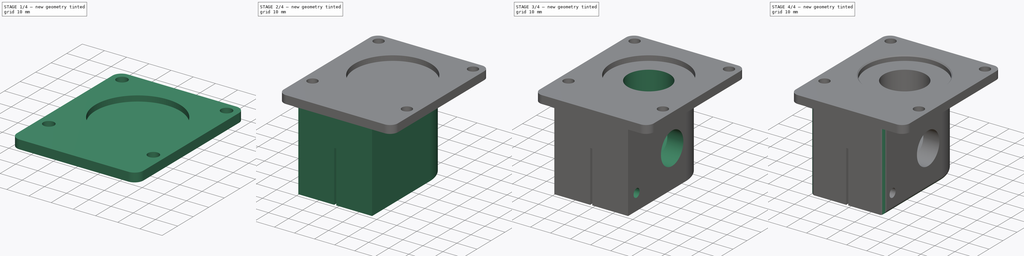
[diagram: build sequence overview — one tinted view per stage of 4, left to right]
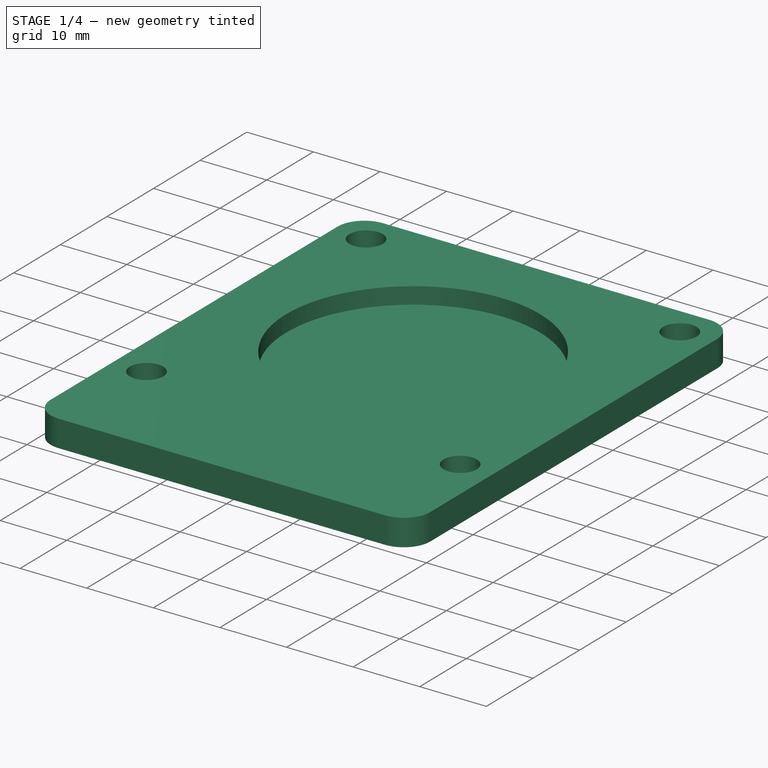
[diagram: stage 1 of 4 — iso view after this stage's code; geometry added in this stage tinted green]
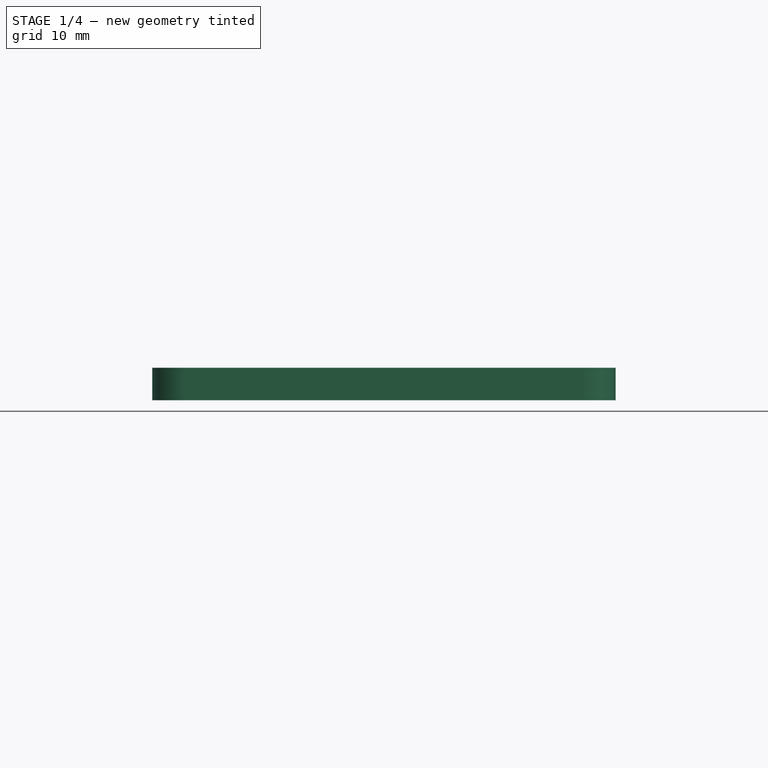
[diagram: stage 1 of 4 — front view after this stage's code; geometry added in this stage tinted green]
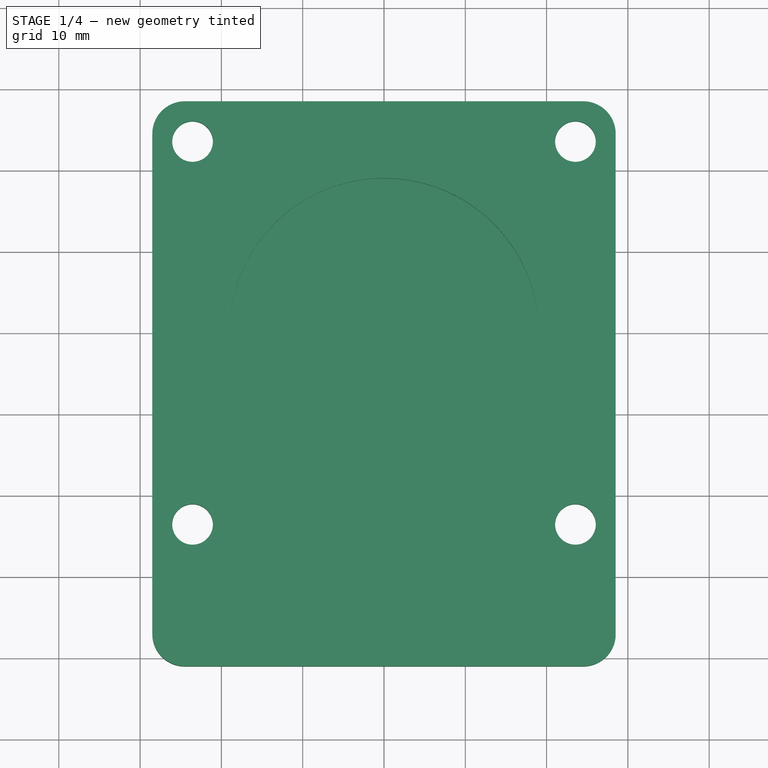
[diagram: stage 1 of 4 — top view after this stage's code; geometry added in this stage tinted green]
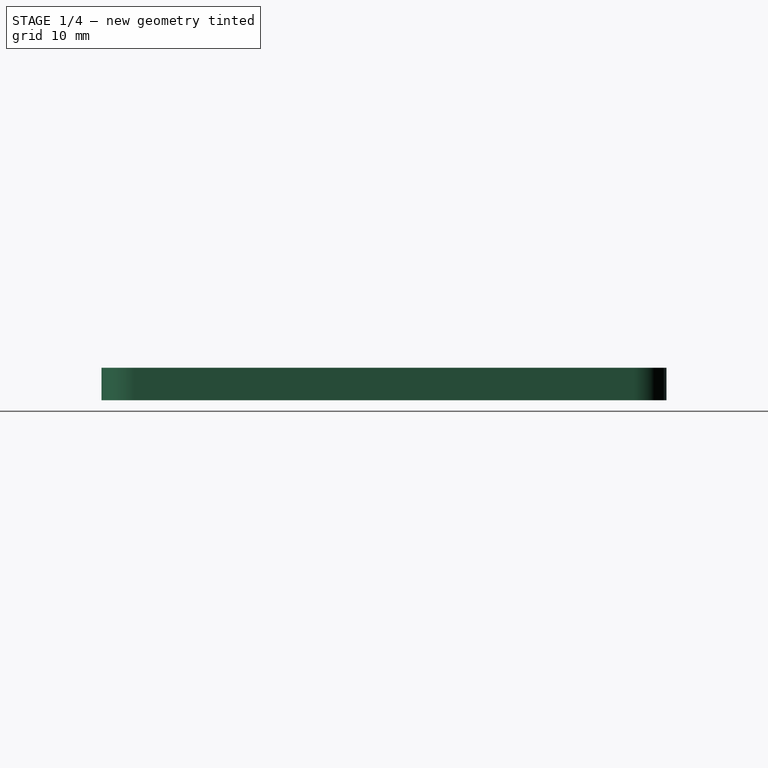
[diagram: stage 1 of 4 — right view after this stage's code; geometry added in this stage tinted green]
FCSTD DOCUMENT  (FreeCAD 0.21R31155 (Git))
Label: BLDC Adapter
License: All rights reserved
LicenseURL: http://en.wikipedia.org/wiki/All_rights_reserved
objects: Sketcher::SketchObject×8, PartDesign::Pocket×5, PartDesign::Pad×2, PartDesign::CoordinateSystem×2, Spreadsheet::Sheet×1, PartDesign::Hole×1, PartDesign::Chamfer×1, PartDesign::Fillet×1, PartDesign::Body×1, App::Part×1
note: 31 computed .brp shape members not serialized (recipe doc carries the construction recipe); baked Part::Feature solids carry a one-line shape summary decoded from their .brp

FEATURE [Spreadsheet::Sheet] Spreadsheet  label="SpindleData"
  cells = A2=Nema23; A3=MotorSize; B3(MotorSize)=57; A4=WallThickness; B4(WallThickness)=4; A6=BodyFilet; B6(BodyFilet)=2; A7=LockBoltDiameter; B7(LockBoltDiameter)=4.1; C7=M4; A8=MotorShaftPocketDiameter; B8(MotorShaftPocketDiameter)=21; C8=Bevel gear 18 mm; A9=MotorShaftOffset; B9(MotorShaftOffset)=18; A10=MotorShaftPocketDepth; B10(MotorShaftPocketDepth)=26; A12=SlitWidth; B12(SlitWidth)=1; A13=SlitLength; B13(SlitLength)==MountingShaftPocketDepth * 0.8 + 1; A15=MountingPlateThickness; B15(MountingPlateThickness)=4; A16=ShaftPositionV; B16(ShaftPositionV)=30; A18=PeekHoleDiameter; B18(PeekHoleDiameter)=16; A21=LockBoltPositionV; B21(LockBoltPositionV)==BodyLength - WallThickness - LockBoltDiameter; A22=LockBoltPositionH; B22(LockBoltPositionH)==MotorShaftOffset + MountingShaftDiameter / 2 + 0.5 + LockBoltDiameter / 2; A25=MountingShaftPocketDepth; B25(MountingShaftPocketDepth)==MotorSize / 2; A26=MountingShaftDiameter; B26(MountingShaftDiameter)=28.8; A28=ShaftPocketDepth; B28(ShaftPocketDepth)==MotorSize / 2 + MotorShaftPocketDiameter; A29=BodyDiameter; B29(BodyDiameter)==MountingShaftDiameter + WallThickness * 2; A30=BodyLength; B30(BodyLength)==LockBoltPositionH + LockBoltDiameter / 2 + 2; A31=BodyHeight; B31(BodyHeight)==LockBoltPositionH + LockBoltDiameter / 2 + WallThickness; A33=SlitPositionV; B33(SlitPositionV)==BodyLength / 2 - 5; A34=SlitPositionH; B34(SlitPositionH)==BodyLength / 2; A35=Print3Dcorrection; B35(Print3Dcorrection)=0.2
FEATURE [Sketcher::SketchObject] Sketch076
  FullyConstrained = true
  MapMode = 5
  Support = -> [XY_Plane027]
  expr: Constraints[41] = Spreadsheet.MotorSize / 2
  expr: Constraints[42] = Spreadsheet.BodyHeight
  sketch-geometry (20):
    g0: LineSegment StartX=-24.5 StartY=28.5 StartZ=0 EndX=24.5 EndY=28.5 EndZ=0
    g1: LineSegment StartX=28.5 StartY=24.5 StartZ=0 EndX=28.5 EndY=-37 EndZ=0
    g2: LineSegment StartX=24.5 StartY=-41 StartZ=0 EndX=-24.5 EndY=-41 EndZ=0
    g3: LineSegment StartX=-28.5 StartY=-37 StartZ=0 EndX=-28.5 EndY=24.5 EndZ=0
    g4: LineSegment StartX=-23.55 StartY=23.55 StartZ=0 EndX=23.55 EndY=23.55 EndZ=0
    g5: LineSegment StartX=23.55 StartY=23.55 StartZ=0 EndX=23.55 EndY=-23.55 EndZ=0
    g6: LineSegment StartX=23.55 StartY=-23.55 StartZ=0 EndX=-23.55 EndY=-23.55 EndZ=0
    g7: LineSegment StartX=-23.55 StartY=-23.55 StartZ=0 EndX=-23.55 EndY=23.55 EndZ=0
    g8: Circle CenterX=-23.55 CenterY=23.55 CenterZ=0 NormalX=0 NormalY=0 NormalZ=1 AngleXU=0 Radius=2.5
    g9: Circle CenterX=23.55 CenterY=23.55 CenterZ=0 NormalX=0 NormalY=0 NormalZ=1 AngleXU=0 Radius=2.5
    g10: Circle CenterX=23.55 CenterY=-23.55 CenterZ=0 NormalX=0 NormalY=0 NormalZ=1 AngleXU=0 Radius=2.5
    g11: Circle CenterX=-23.55 CenterY=-23.55 CenterZ=0 NormalX=0 NormalY=0 NormalZ=1 AngleXU=0 Radius=2.5
    g12: ArcOfCircle CenterX=-24.5 CenterY=24.5 CenterZ=0 NormalX=0 NormalY=0 NormalZ=1 AngleXU=0 Radius=4 StartAngle=1.5708 EndAngle=3.14159
    g13: GeomPoint X=-28.5 Y=28.5 Z=0
    g14: ArcOfCircle CenterX=24.5 CenterY=24.5 CenterZ=0 NormalX=0 NormalY=0 NormalZ=1 AngleXU=0 Radius=4 StartAngle=3e-16 EndAngle=1.5708
    g15: GeomPoint X=28.5 Y=28.5 Z=0
    g16: ArcOfCircle CenterX=24.5 CenterY=-37 CenterZ=0 NormalX=0 NormalY=0 NormalZ=1 AngleXU=0 Radius=4 StartAngle=4.71239 EndAngle=6.28319
    g17: GeomPoint X=28.5 Y=-41 Z=0
    g18: ArcOfCircle CenterX=-24.5 CenterY=-37 CenterZ=0 NormalX=0 NormalY=0 NormalZ=1 AngleXU=0 Radius=4 StartAngle=3.14159 EndAngle=4.71239
    g19: GeomPoint X=-28.5 Y=-41 Z=0
  constraints (46):
    c: Horizontal(g0)
    c: Horizontal(g2)
    c: Vertical(g1)
    c: Vertical(g3)
    c: DistanceX(g13,g15) = 57
    c: Coincident(g4,g5)
    c: Coincident(g5,g6)
    c: Coincident(g6,g7)
    c: Coincident(g7,g4)
    c: Horizontal(g4)
    c: Horizontal(g6)
    c: Vertical(g5)
    c: Vertical(g7)
    c: DistanceX(g4,g4) = 47.1
    c: Coincident(g8,g4)
    c: Diameter(g8) = 5
    c: Coincident(g9,g4)
    c: Coincident(g10,g5)
    c: Coincident(g11,g6)
    c: Equal(g8,g9)
    c: Equal(g9,g10)
    c: Equal(g10,g11)
    c: PointOnObject(g13,g3)
    c: PointOnObject(g13,g0)
    c: Tangent(g3,g12) = 1.5708
    c: Tangent(g0,g12) = 1.5708
    c: PointOnObject(g15,g0)
    c: PointOnObject(g15,g1)
    c: Tangent(g0,g14) = 1.5708
    c: Tangent(g1,g14) = 1.5708
    c: PointOnObject(g17,g1)
    c: PointOnObject(g17,g2)
    c: Tangent(g1,g16) = 1.5708
    c: Tangent(g2,g16) = 1.5708
    c: PointOnObject(g19,g2)
    c: PointOnObject(g19,g3)
    c: Tangent(g2,g18) = 1.5708
    c: Tangent(g3,g18) = 1.5708
    c: Radius(g12) = 4
    c: Equal(g2,g0)
    c: Symmetric(g3,g1,g-2)
    c: DistanceY(g-1,g0) = 28.5
    c: DistanceY(g17,g-1) = 41
    c: Equal(g3,g1)
    c: Symmetric(g8,g10,g-1)
    c: Equal(g4,g7)
FEATURE [PartDesign::Pad] Pad044  label="Base"
  Direction = (0,0,1)
  Length = 4
  Length2 = 10
  Profile = -> Sketch076
  ReferenceAxis = -> Sketch076 [N_Axis]
  Type = 0
  expr: Length = Spreadsheet.MountingPlateThickness
FEATURE [Sketcher::SketchObject] Sketch077
  FullyConstrained = true
  MapMode = 5
  Support = -> [XY_Plane027]
  expr: Constraints[3] = Spreadsheet.BodyDiameter
  expr: Constraints[9] = Spreadsheet.BodyHeight
  sketch-geometry (4):
    g0: LineSegment StartX=-18.4 StartY=-41 StartZ=0 EndX=18.4 EndY=-41 EndZ=0
    g1: ArcOfCircle CenterX=0 CenterY=0 CenterZ=0 NormalX=0 NormalY=0 NormalZ=1 AngleXU=0 Radius=18.4 StartAngle=0 EndAngle=3.14159
    g2: LineSegment StartX=18.4 StartY=-41 StartZ=0 EndX=18.4 EndY=0 EndZ=0
    g3: LineSegment StartX=-18.4 StartY=0 StartZ=0 EndX=-18.4 EndY=-41 EndZ=0
  constraints (10):
    c: Horizontal(g0)
    c: Tangent(g2,g1) = -1.5708
    c: Tangent(g1,g3) = -1.5708
    c: Diameter(g1) = 36.8
    c: Coincident(g2,g0)
    c: Coincident(g3,g0)
    c: Vertical(g3)
    c: Vertical(g2)
    c: Coincident(g1,g-1)
    c: DistanceY(g2,g2) = 41
FEATURE [Sketcher::SketchObject] Sketch078
  FullyConstrained = true
  MapMode = 5
  Placement = pos=(0,0,4) rot=(0,0,1;0rad)
  Support = -> [Pad044]
  sketch-geometry (1):
    g0: Circle CenterX=0 CenterY=0 CenterZ=0 NormalX=0 NormalY=0 NormalZ=1 AngleXU=0 Radius=19.05
  constraints (2):
    c: Coincident(g0,g-1)
    c: Diameter(g0) = 38.1
FEATURE [PartDesign::Pocket] Pocket025  label="Register"
  BaseFeature = -> Pad044
  Direction = (0,0,-1)
  Length = 2.5
  Length2 = 5
  Profile = -> Sketch078
  ReferenceAxis = -> Sketch078 [N_Axis]
  Type = 0
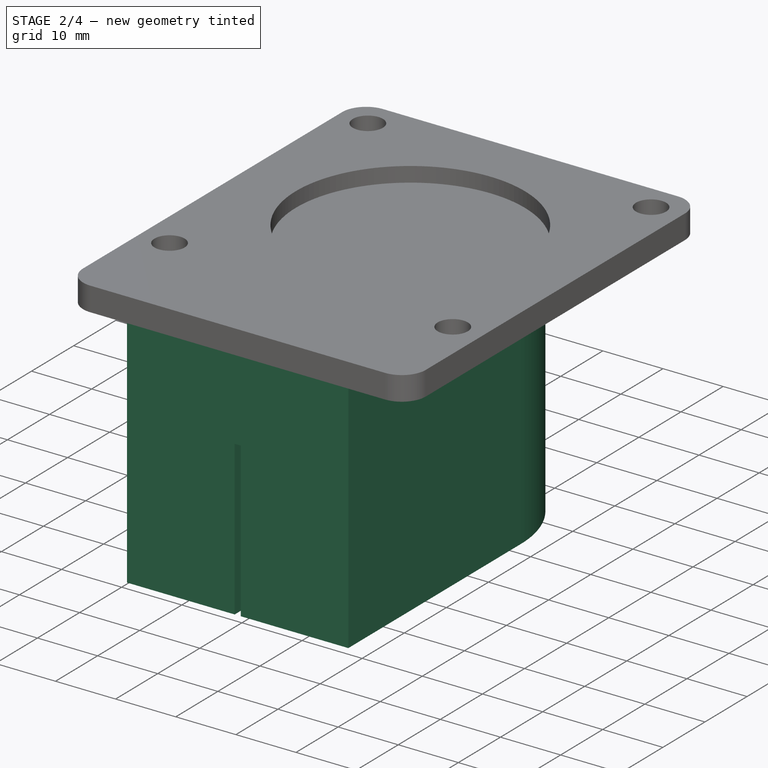
[diagram: stage 2 of 4 — iso view after this stage's code; geometry added in this stage tinted green]
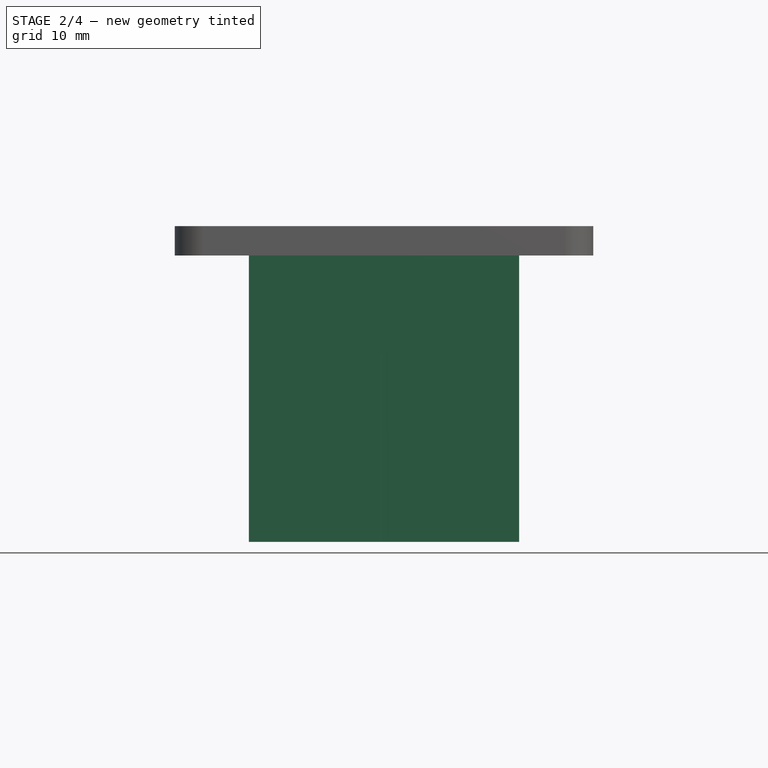
[diagram: stage 2 of 4 — front view after this stage's code; geometry added in this stage tinted green]
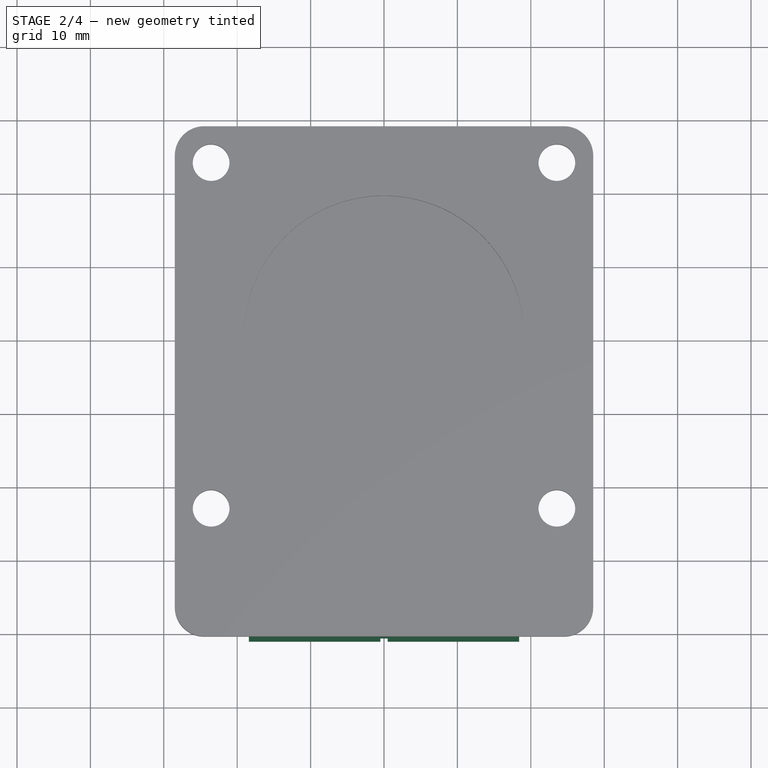
[diagram: stage 2 of 4 — top view after this stage's code; geometry added in this stage tinted green]
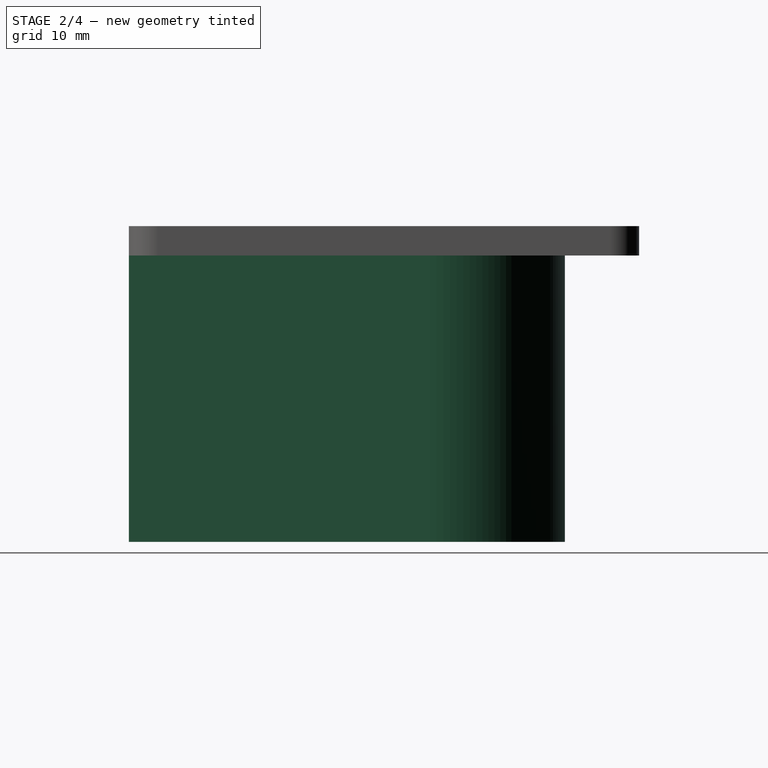
[diagram: stage 2 of 4 — right view after this stage's code; geometry added in this stage tinted green]
FEATURE [PartDesign::Pad] Pad045  label="BodyOuter"
  BaseFeature = -> Pocket025
  Direction = (0,0,1)
  Length = 39
  Length2 = 10
  Profile = -> Sketch077
  ReferenceAxis = -> Sketch077 [N_Axis]
  Reversed = true
  Type = 0
  expr: Length = Spreadsheet.BodyLength
FEATURE [Sketcher::SketchObject] Sketch
  AttachmentOffset = pos=(0,0,-39) rot=(0,0,1;0rad)
  FullyConstrained = true
  MapMode = 5
  Placement = pos=(0,0,-39) rot=(0,0,1;0rad)
  Support = -> [XY_Plane027]
  expr: .AttachmentOffset.Base.z = -Spreadsheet.BodyLength
  expr: Constraints[1] = Spreadsheet.MountingShaftDiameter + Spreadsheet.Print3Dcorrection
  expr: Constraints[2] = Spreadsheet.MotorShaftOffset
  sketch-geometry (1):
    g0: Circle CenterX=0 CenterY=-18 CenterZ=0 NormalX=0 NormalY=0 NormalZ=1 AngleXU=0 Radius=14.5
  constraints (3):
    c: PointOnObject(g0,g-2)
    c: Diameter(g0) = 29
    c: DistanceY(g0,g-1) = 18
FEATURE [PartDesign::Pocket] Pocket  label="MountingShaftPocket"
  BaseFeature = -> Pad045
  Direction = (0,0,-1)
  Length = 28.5
  Length2 = 5
  Profile = -> Sketch
  ReferenceAxis = -> Sketch [N_Axis]
  Reversed = true
  Type = 0
  expr: Length = Spreadsheet.MountingShaftPocketDepth
FEATURE [Sketcher::SketchObject] Sketch081
  AttachmentOffset = pos=(0,0,28.5) rot=(0,0,1;0rad)
  FullyConstrained = true
  MapMode = 5
  Placement = pos=(0,-28.5,-6.3e-15) rot=(1,0,0;1.5708rad)
  Support = -> [XZ_Plane027]
  expr: .AttachmentOffset.Base.z = Spreadsheet.MotorSize / 2
  expr: Constraints[10] = Spreadsheet.MountingShaftPocketDepth * 0.9 + 1
  expr: Constraints[7] = Spreadsheet.SlitWidth
  expr: Constraints[9] = Spreadsheet.BodyLength + 1
  sketch-geometry (4):
    g0: LineSegment StartX=-0.5 StartY=-13.35 StartZ=0 EndX=0.5 EndY=-13.35 EndZ=0
    g1: LineSegment StartX=0.5 StartY=-13.35 StartZ=0 EndX=0.5 EndY=-40 EndZ=0
    g2: LineSegment StartX=0.5 StartY=-40 StartZ=0 EndX=-0.5 EndY=-40 EndZ=0
    g3: LineSegment StartX=-0.5 StartY=-40 StartZ=0 EndX=-0.5 EndY=-13.35 EndZ=0
  constraints (11):
    c: Coincident(g0,g1)
    c: Coincident(g1,g2)
    c: Coincident(g2,g3)
    c: Coincident(g3,g0)
    c: Horizontal(g2)
    c: Vertical(g1)
    c: Vertical(g3)
    c: DistanceX(g2,g2) = 1
    c: Symmetric(g0,g0,g-2)
    c: DistanceY(g1,g-1) = 40
    c: DistanceY(g1,g1) = 26.65
FEATURE [PartDesign::Pocket] Pocket028  label="SlitV"
  BaseFeature = -> Pocket
  Direction = (0,1,2e-16)
  Length = 19.5
  Length2 = 5
  Profile = -> Sketch081
  ReferenceAxis = -> Sketch081 [N_Axis]
  Reversed = true
  Type = 1
  expr: Length = Spreadsheet.SlitPositionH
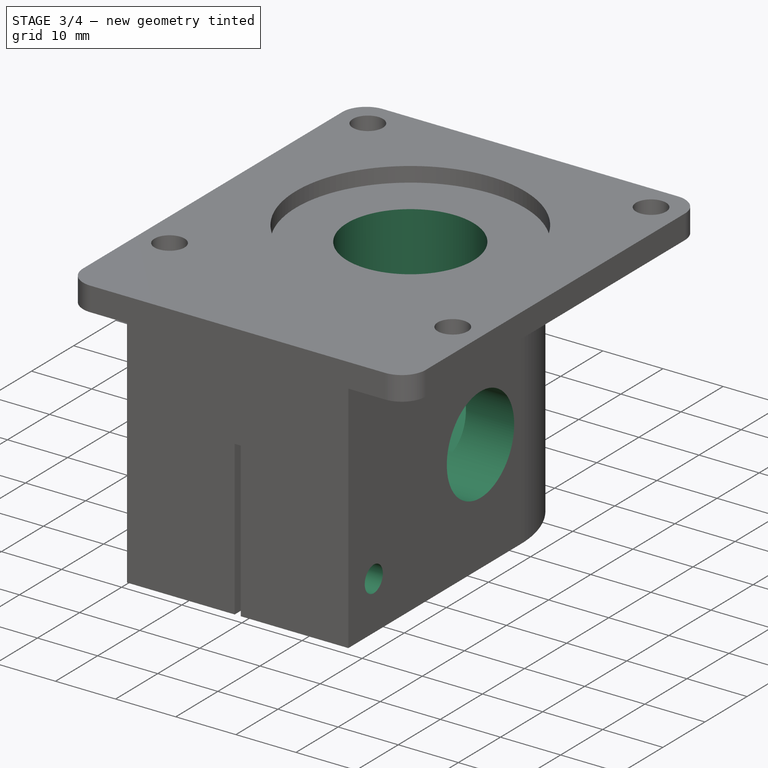
[diagram: stage 3 of 4 — iso view after this stage's code; geometry added in this stage tinted green]
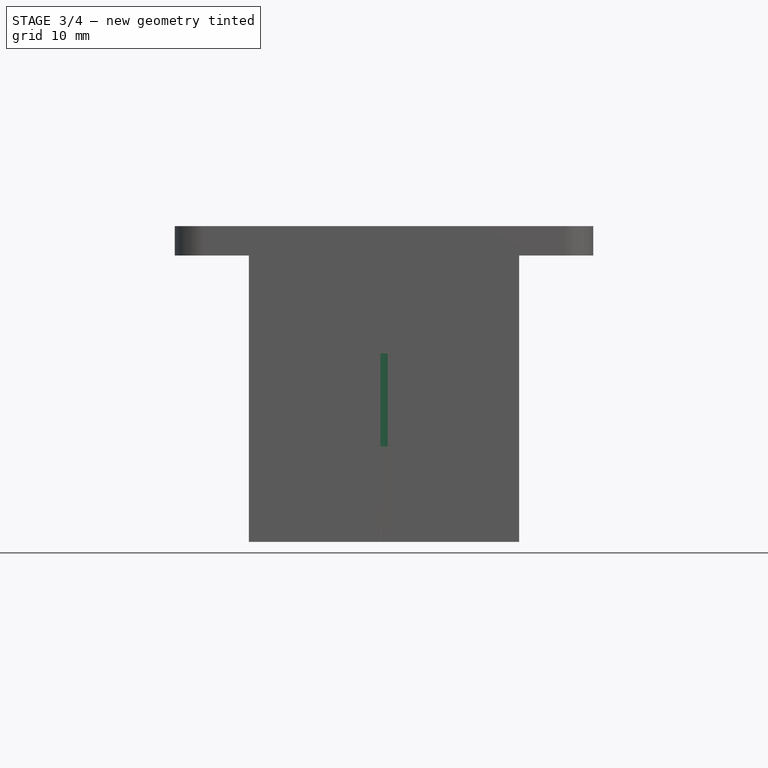
[diagram: stage 3 of 4 — front view after this stage's code; geometry added in this stage tinted green]
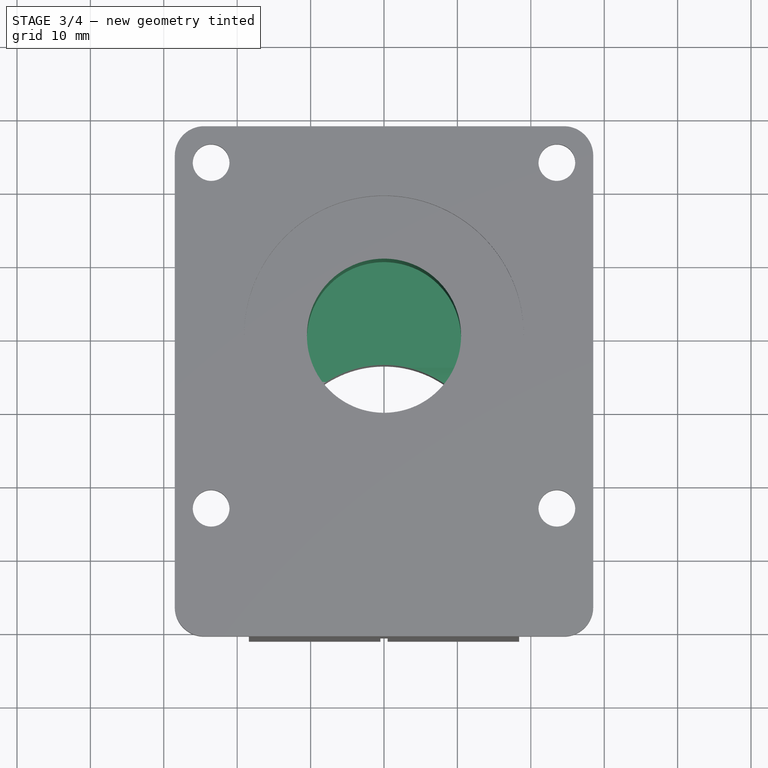
[diagram: stage 3 of 4 — top view after this stage's code; geometry added in this stage tinted green]
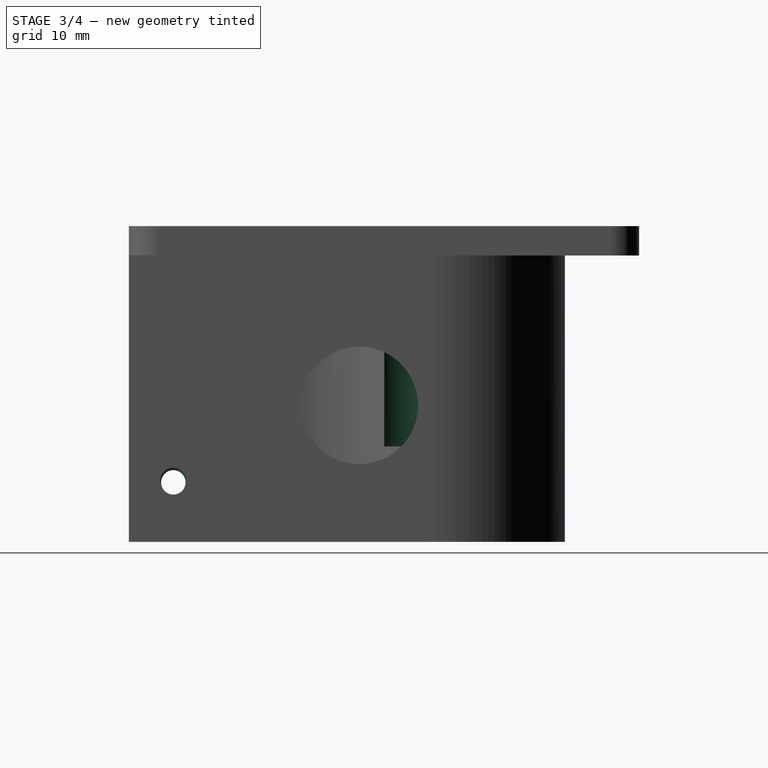
[diagram: stage 3 of 4 — right view after this stage's code; geometry added in this stage tinted green]
FEATURE [PartDesign::CoordinateSystem] MountingFlange
  AttacherType = Attacher::AttachEngine3D
  MapMode = 11
  Placement = pos=(0,-18,-39) rot=(0,0,1;1.5708rad)
  Support = -> [Sketch]
FEATURE [Sketcher::SketchObject] Sketch083
  AttachmentOffset = pos=(0,0,18.4) rot=(0,0,1;0rad)
  FullyConstrained = true
  MapMode = 5
  Placement = pos=(18.4,-4.1e-15,4.1e-15) rot=(0.57735,0.57735,0.57735;2.0944rad)
  Support = -> [YZ_Plane027]
  expr: .AttachmentOffset.Base.z = Spreadsheet.BodyDiameter / 2
  expr: Constraints[1] = Spreadsheet.LockBoltPositionV
  expr: Constraints[2] = Spreadsheet.LockBoltPositionH
  sketch-geometry (1):
    g0: Circle CenterX=-34.95 CenterY=-30.9 CenterZ=0 NormalX=0 NormalY=0 NormalZ=1 AngleXU=0 Radius=1.5
  constraints (3):
    c: Diameter(g0) = 3
    c: DistanceY(g0,g-1) = 30.9
    c: DistanceX(g0,g-1) = 34.95
FEATURE [PartDesign::Hole] Hole  label="LockHole"
  BaseFeature = -> Pocket028
  CustomThreadClearance = 0
  Depth = 36.8
  DepthType = 0
  Diameter = 3.322
  DrillForDepth = false
  DrillPoint = 0
  DrillPointAngle = 117
  HoleCutCountersinkAngle = 90
  HoleCutCustomValues = false
  HoleCutDepth = 4.4
  HoleCutDiameter = 8
  HoleCutType = 1
  ModelThread = true
  Profile = -> Sketch083
  Tapered = false
  TaperedAngle = 90
  ThreadClass = 0
  ThreadDepth = 36.8
  ThreadDepthType = 0
  ThreadDirection = 0
  ThreadFit = 0
  ThreadSize = 11
  ThreadType = 1
  Threaded = true
  UseCustomThreadClearance = false
  expr: Depth = Spreadsheet.BodyDiameter
  expr: HoleCutDepth = Spreadsheet.BodyDiameter / 2
  expr: HoleCutDiameter = Spreadsheet.LockBoltDiameter + Spreadsheet.Print3Dcorrection
FEATURE [PartDesign::CoordinateSystem] MotorFlange
  AttacherType = Attacher::AttachEngine3D
  MapMode = 11
  Placement = pos=(0,0,4) rot=(0,0,1;1.5708rad)
  Support = -> [Hole]
FEATURE [Sketcher::SketchObject] Sketch084
  FullyConstrained = false
  MapMode = 5
  Placement = pos=(0,0,0) rot=(0.57735,0.57735,0.57735;2.0944rad)
  Support = -> [YZ_Plane027]
  expr: Constraints[0] = Spreadsheet.PeekHoleDiameter
  sketch-geometry (1):
    g0: Circle CenterX=-9.61004 CenterY=-20.4015 CenterZ=0 NormalX=0 NormalY=0 NormalZ=1 AngleXU=0 Radius=8
  constraints (1):
    c: Diameter(g0) = 16
FEATURE [PartDesign::Pocket] Pocket032  label="PeekPocket"
  BaseFeature = -> Hole
  Direction = (-1,2e-16,-3e-16)
  Length = 5
  Length2 = 5
  Profile = -> Sketch084
  ReferenceAxis = -> Sketch084 [N_Axis]
  Reversed = true
  Type = 1
FEATURE [Sketcher::SketchObject] Sketch085
  AttachmentOffset = pos=(0,0,4) rot=(0,0,1;0rad)
  FullyConstrained = true
  MapMode = 5
  Placement = pos=(0,0,4) rot=(0,0,1;0rad)
  Support = -> [XY_Plane027]
  expr: .AttachmentOffset.Base.z = Spreadsheet.WallThickness
  expr: Constraints[1] = Spreadsheet.MotorShaftPocketDiameter
  sketch-geometry (1):
    g0: Circle CenterX=0 CenterY=0 CenterZ=0 NormalX=0 NormalY=0 NormalZ=1 AngleXU=0 Radius=10.5
  constraints (2):
    c: Coincident(g0,g-1)
    c: Diameter(g0) = 21
FEATURE [PartDesign::Pocket] Pocket033  label="MotorShaftPocket"
  BaseFeature = -> Pocket032
  Direction = (0,0,-1)
  Length = 30
  Length2 = 5
  Profile = -> Sketch085
  ReferenceAxis = -> Sketch085 [N_Axis]
  Type = 0
  expr: Length = Spreadsheet.MotorShaftPocketDepth + Spreadsheet.WallThickness
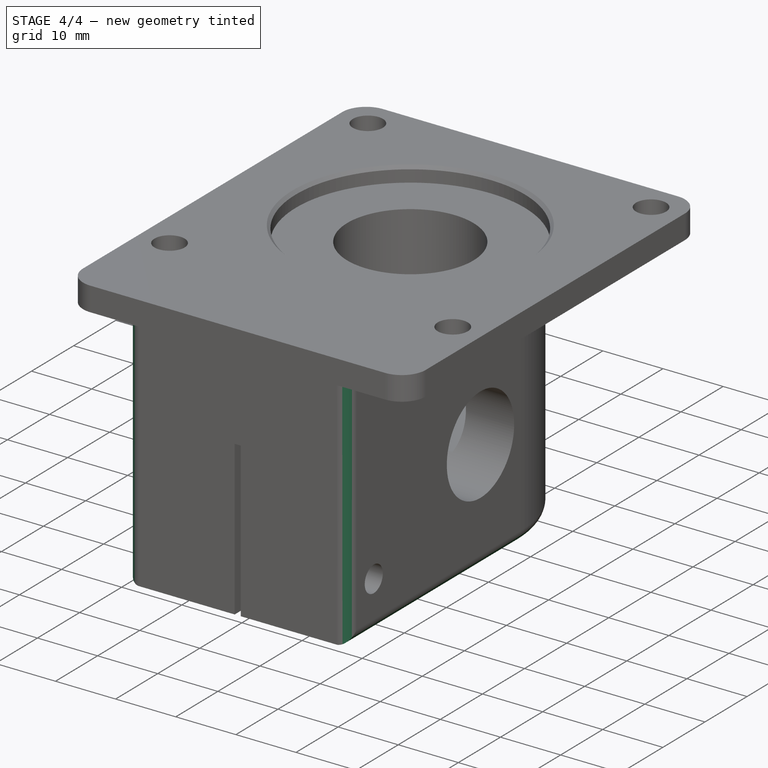
[diagram: stage 4 of 4 — iso view after this stage's code; geometry added in this stage tinted green]
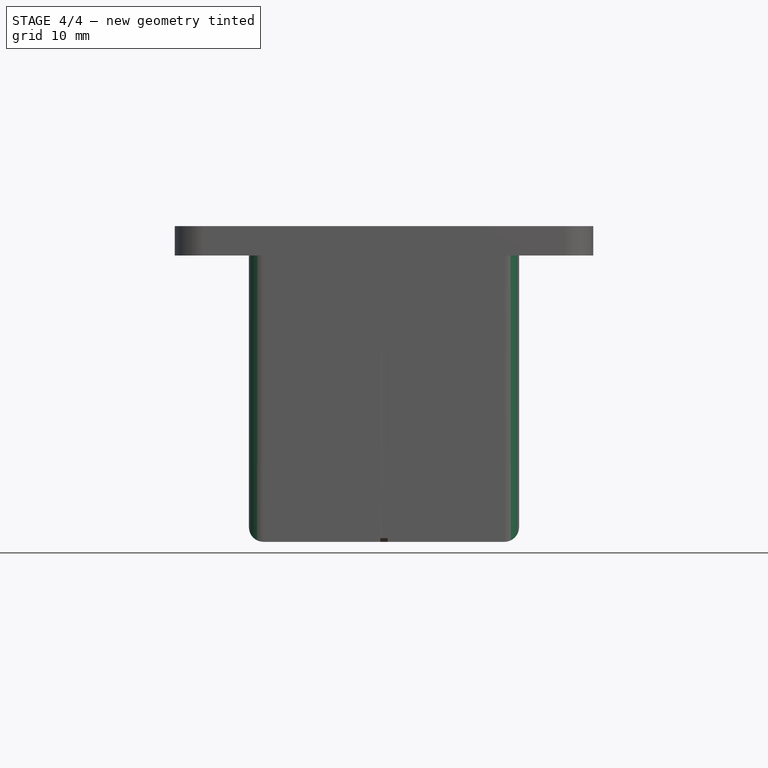
[diagram: stage 4 of 4 — front view after this stage's code; geometry added in this stage tinted green]
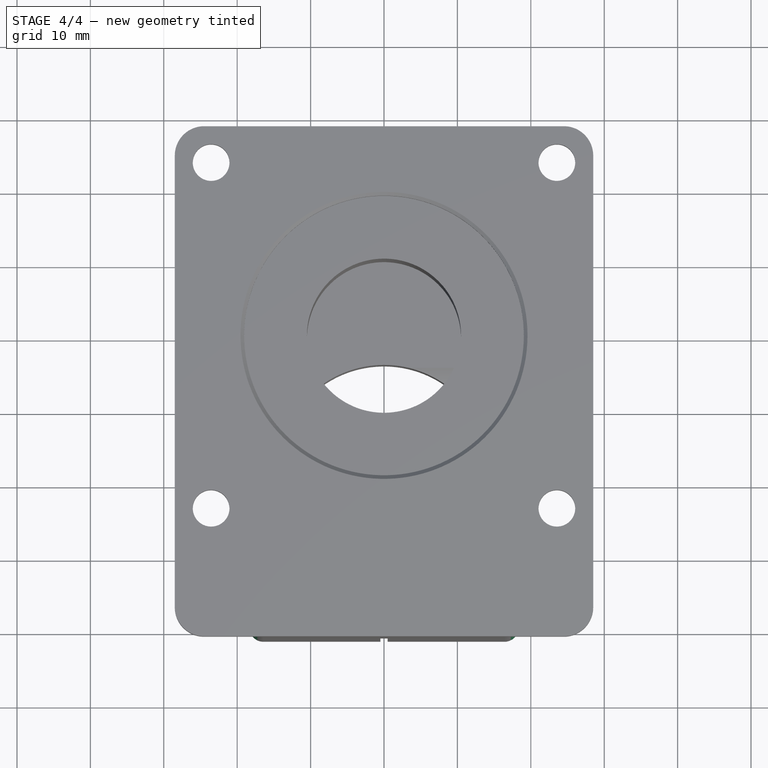
[diagram: stage 4 of 4 — top view after this stage's code; geometry added in this stage tinted green]
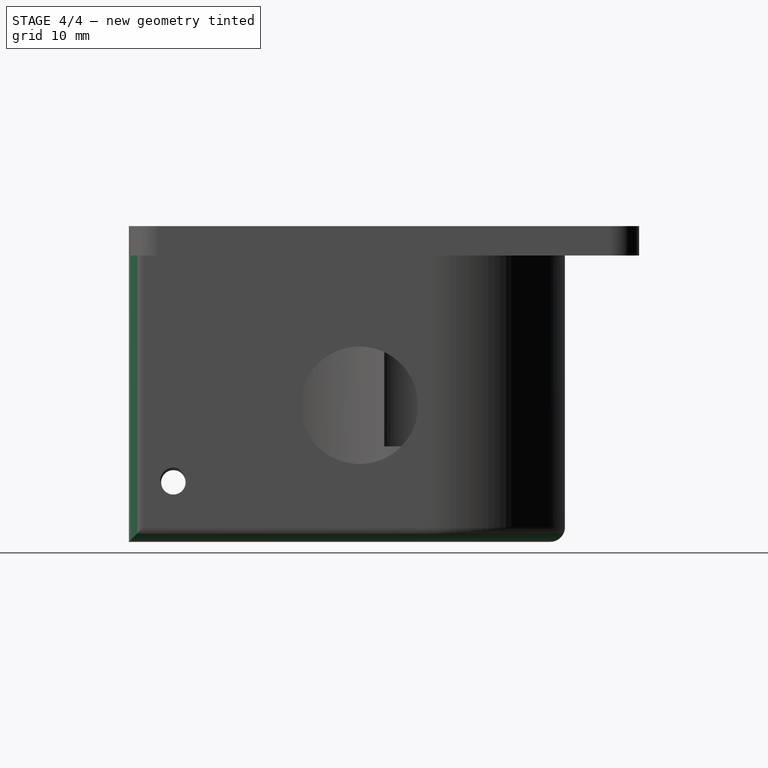
[diagram: stage 4 of 4 — right view after this stage's code; geometry added in this stage tinted green]
FEATURE [PartDesign::Chamfer] Chamfer
  Angle = 45
  Base = -> Pocket033 [Edge30,Edge62]
  BaseFeature = -> Pocket033
  ChamferType = 0
  FlipDirection = false
  Size = 0.5
  Size2 = 1
  SupportTransform = false
  UseAllEdges = false
FEATURE [PartDesign::Fillet] Fillet
  Base = -> Chamfer [Edge56,Edge61,Edge47,Edge53]
  BaseFeature = -> Chamfer
  Radius = 2
  SupportTransform = false
  UseAllEdges = false
  expr: Radius = Spreadsheet.BodyFilet
FEATURE [PartDesign::Body] Body019
  Group = -> [Sketch076,Pad044,Sketch078,Pocket025,Sketch077,Pad045,Sketch,Pocket,Sketch081,Pocket028,Sketch083,Hole,Sketch084,Pocket032,Sketch085,Pocket033,Chamfer,Fillet]
  Origin = -> Origin027
  Tip = -> Fillet
FEATURE [App::Part] Part006  label="BLDC adapter Horizontal"
  Group = -> [Body019,MountingFlange,MotorFlange]
  Origin = -> Origin026
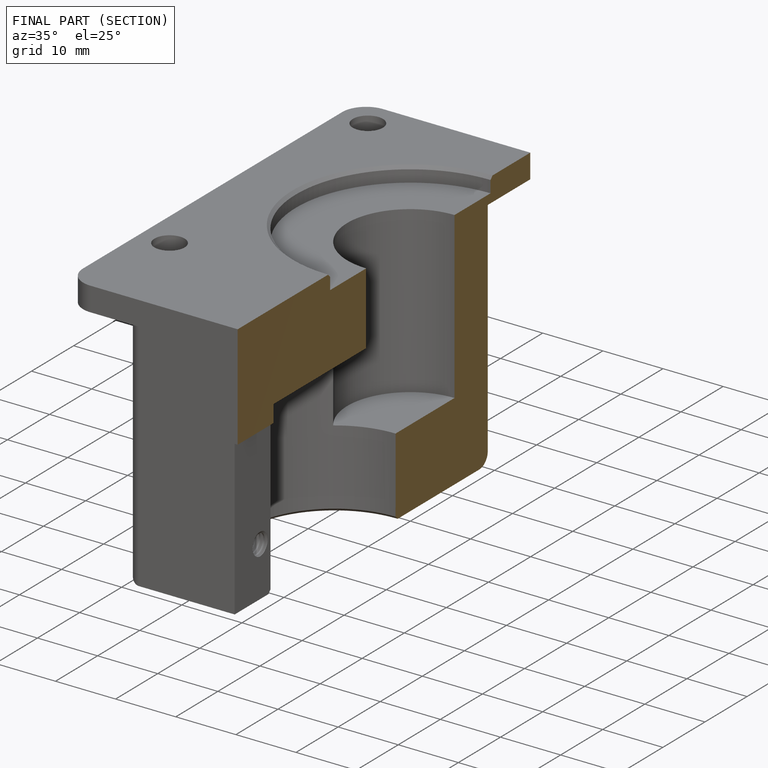
[diagram: finished part — half-section view (interior)]
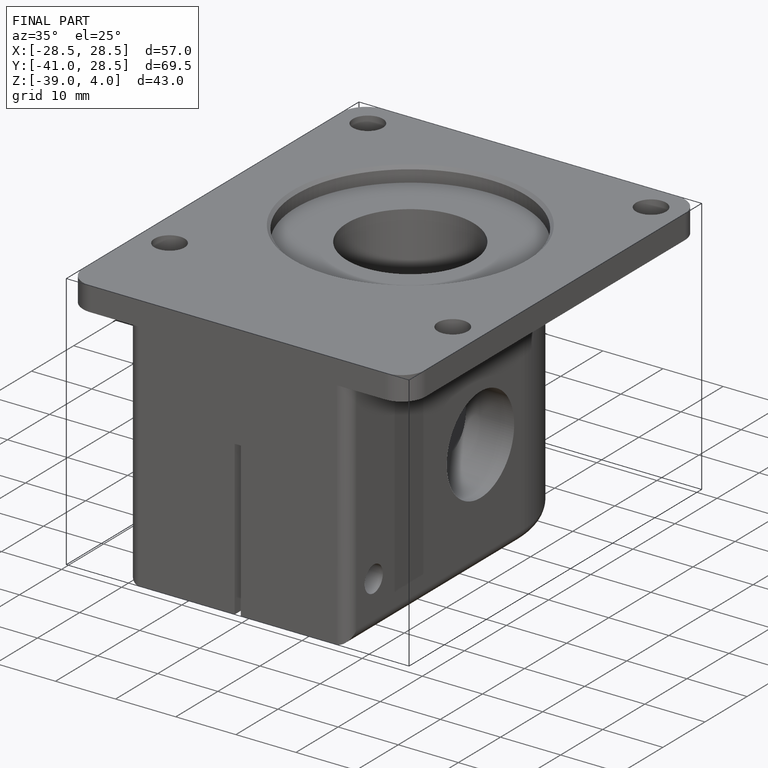
[diagram: finished part — iso view with bounding-box wireframe]
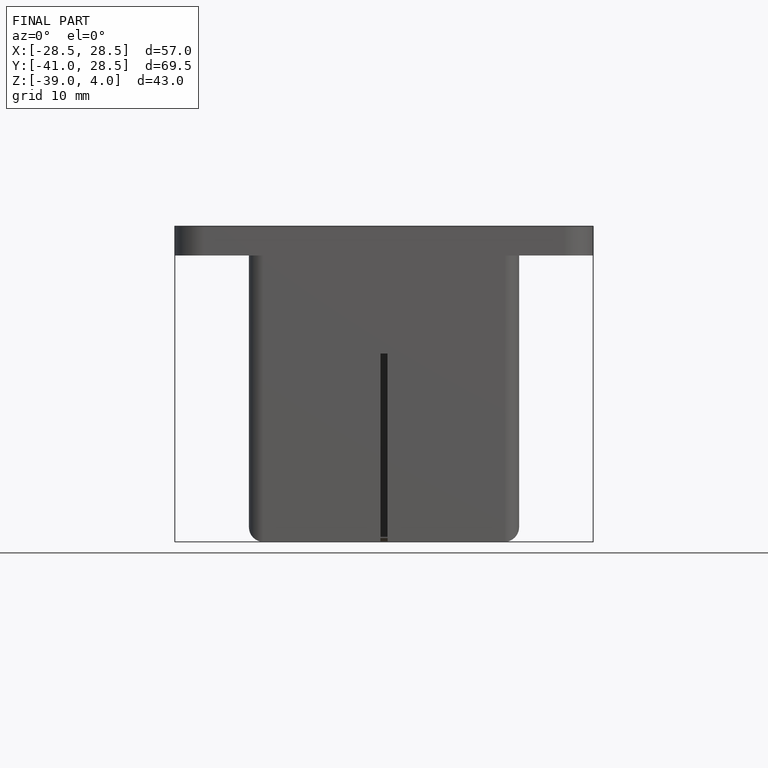
[diagram: finished part — front view with bounding-box wireframe]
